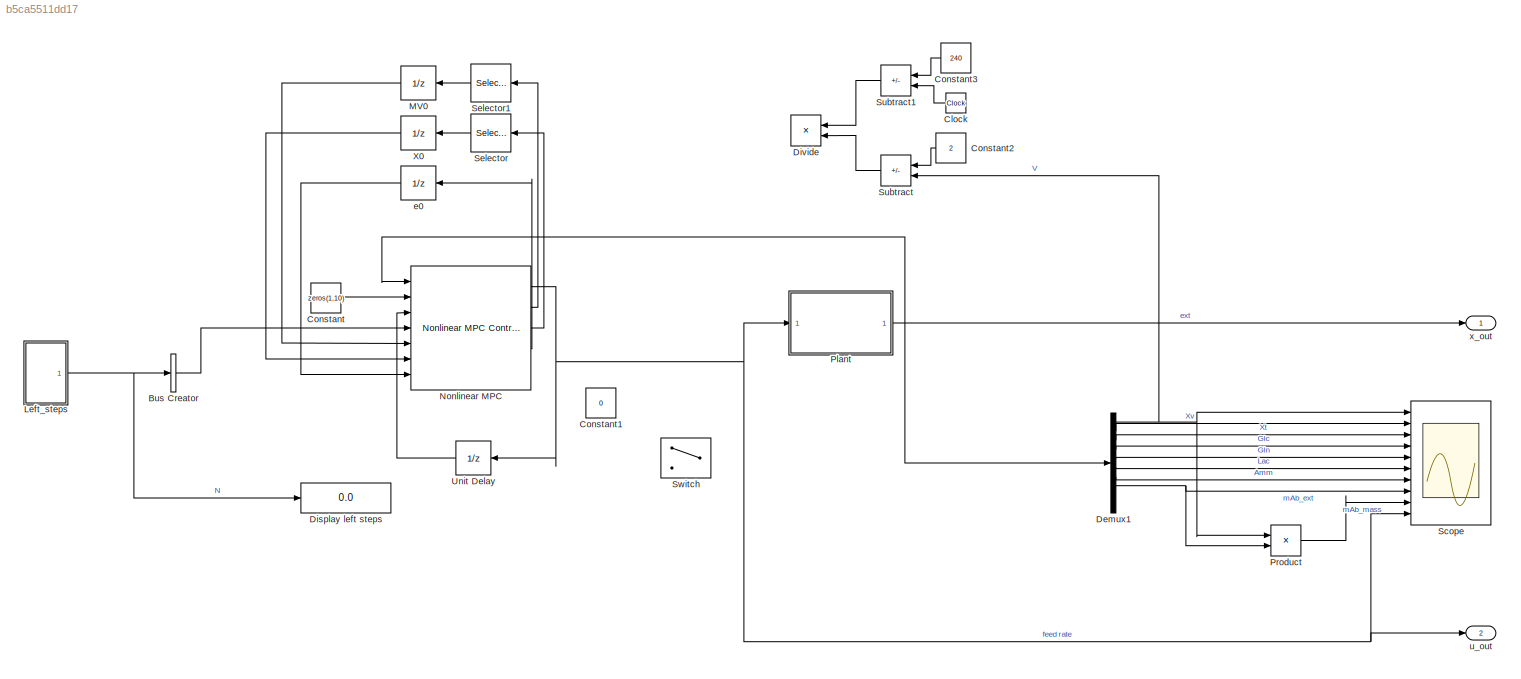
MODEL slx_b5ca5511dd17
KIND model
CONFIG AbsTol = auto
CONFIG EnableMultiTasking = off
CONFIG FixedStep = auto
CONFIG MaxStep = auto
CONFIG MinStep = auto
CONFIG RelTol = 1e-3
CONFIG SampleTimeConstraint = Unconstrained
CONFIG SolverName = VariableStepAuto
CONFIG StartTime = 0.0
CONFIG StopTime = 240
BLOCK [BusCreator] Bus Creator
  DisplayOption = bar
  InheritFromInputs = off
  Inputs = 1
  NonVirtualBus = on
  OutDataTypeStr = Bus: myBusObject
  Ports = [1, 1]
BLOCK [Clock] Clock
  Commented = on
  DisplayTime = on
BLOCK [Constant] Constant
  Value = zeros(1,10)
  VectorParams1D = off
BLOCK [Constant] Constant1
  Value = 0
BLOCK [Constant] Constant2
  Commented = on
  Value = 2
BLOCK [Constant] Constant3
  Commented = on
  Value = 240
BLOCK [Demux] Demux1
  Outputs = 10
  Ports = [1, 10]
BLOCK [Display] Display left steps
  Decimation = 1
  Ports = [1]
BLOCK [Product] Divide
  Commented = on
  Inputs = /*
  Ports = [2, 1]
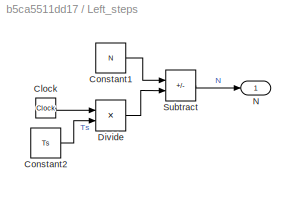
BLOCK [SubSystem] Left_steps
  Ports = [0, 1]
  RequestExecContextInheritance = off
BLOCK [Clock] Left_steps/Clock
  DisplayTime = on
BLOCK [Constant] Left_steps/Constant1
  Value = N
BLOCK [Constant] Left_steps/Constant2
  Value = Ts
BLOCK [Product] Left_steps/Divide
  Inputs = */
  Ports = [2, 1]
BLOCK [Outport] Left_steps/N
BLOCK [Sum] Left_steps/Subtract
  IconShape = rectangular
  Inputs = +-
  Ports = [2, 1]
BLOCK [UnitDelay] MV0
  HasFrameUpgradeWarning = on
  InitialCondition = Info_error.MVopt(2:end,:)
  SampleTime = -1
BLOCK [Reference] Nonlinear MPC  REF=mpclib/Nonlinear MPC Controller  (lib defined in mdl_ae329e0e0455)
  Ports = [7, 5]
  SourceBlock = mpclib/Nonlinear MPC Controller
  SourceProductBaseCode = MP
  SourceType = NonlinearMPC
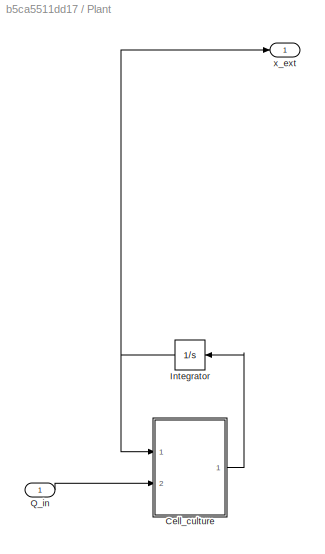
BLOCK [SubSystem] Plant
  Ports = [1, 1]
  RequestExecContextInheritance = off
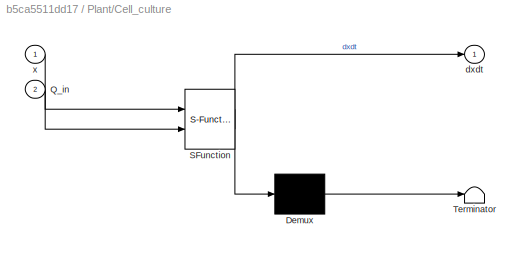
BLOCK [SubSystem] Plant/Cell_culture
  ErrorFcn = Stateflow.Translate.translate
  PermitHierarchicalResolution = ExplicitOnly
  Ports = [2, 1]
  RequestExecContextInheritance = off
  SFBlockType = MATLAB Function
  TreatAsAtomicUnit = on
BLOCK [Demux] Plant/Cell_culture/ Demux 
  Outputs = 1
  Ports = [1, 1]
BLOCK [S-Function] Plant/Cell_culture/ SFunction 
  EnableBusSupport = on
  FunctionName = sf_sfun
  PortCounts = [2 2]
  Ports = [2, 2]
  SFcnIsStateOwnerBlock = off
  SFunctionDeploymentMode = off
  Tag = Stateflow S-Function 3
BLOCK [Terminator] Plant/Cell_culture/ Terminator 
BLOCK [Inport] Plant/Cell_culture/Q_in
  Port = 2
BLOCK [Outport] Plant/Cell_culture/dxdt
  VectorParamsAs1DForOutWhenUnconnected = off
BLOCK [Inport] Plant/Cell_culture/x
BLOCK [Integrator] Plant/Integrator
  InitialCondition = x0
  LimitOutput = on
  LowerSaturationLimit = 0
  Ports = [1, 1]
BLOCK [Inport] Plant/Q_in
BLOCK [Outport] Plant/x_ext
BLOCK [Product] Product
  Ports = [2, 1]
BLOCK [Scope] Scope
  Floating = off
  NumInputPorts = 10
  Ports = [10]
  ScopeSpecificationString = Simulink.scopes.TimeScopeBlockCfg('CurrentConfiguration', extmgr.ConfigurationSet(extmgr.Configuration('Core','General UI',true),extmgr.Configuration('Core','Source UI',true),extmgr.Configuration('Sources','WiredSimulink',true,'DataLoggingVariableName','ScopeData1'),extmgr.Configuration('Visuals','Time Domain',true,'SerializedDisplays',{struct('MinYLimReal','0.55897','MaxYLimReal','2.96926','YLabe...<+10585ch>
BLOCK [Selector] Selector
  IndexOptions = Index vector (dialog),Select all
  Indices = 2:21,1
  InputPortWidth = 3
  NumberOfDimensions = 2
  OutputSizes = 1,1
  Ports = [1, 1]
BLOCK [Selector] Selector1
  IndexOptions = Index vector (dialog),Select all
  Indices = 2:21,1
  InputPortWidth = 3
  NumberOfDimensions = 2
  OutputSizes = 1,1
  Ports = [1, 1]
BLOCK [Sum] Subtract
  Commented = on
  IconShape = rectangular
  Inputs = +-
  Ports = [2, 1]
BLOCK [Sum] Subtract1
  Commented = on
  IconShape = rectangular
  Inputs = +-
  Ports = [2, 1]
BLOCK [Switch] Switch
  Criteria = u2 > Threshold
  InputSameDT = off
  SaturateOnIntegerOverflow = off
BLOCK [UnitDelay] Unit Delay
  HasFrameUpgradeWarning = on
  InitialCondition = 1/Tf*[1;1]
  SampleTime = -1
BLOCK [UnitDelay] X0
  HasFrameUpgradeWarning = on
  InitialCondition = Info_error.Xopt(2:end,:)
  SampleTime = -1
BLOCK [UnitDelay] e0
  HasFrameUpgradeWarning = on
  SampleTime = -1
BLOCK [Outport] u_out
  Port = 2
BLOCK [Outport] x_out
LINE Bus Creator:1 -> Nonlinear MPC:4
LINE Clock:1 -> Subtract1:2
LINE Constant2:1 -> Subtract:1
LINE Constant3:1 -> Subtract1:1
LINE Constant:1 -> Nonlinear MPC:2
NET Demux1:1 -> Product:1, Scope:1, Subtract:2
LINE Demux1:2 -> Scope:2
LINE Demux1:3 -> Scope:3
LINE Demux1:4 -> Scope:4
LINE Demux1:5 -> Scope:5
LINE Demux1:6 -> Scope:6
LINE Demux1:7 -> Scope:7
NET Demux1:8 -> Product:2, Scope:8
LINE Left_steps/Clock:1 -> Left_steps/Divide:1
LINE Left_steps/Constant1:1 -> Left_steps/Subtract:1
LINE Left_steps/Constant2:1 -> Left_steps/Divide:2
LINE Left_steps/Divide:1 -> Left_steps/Subtract:2
LINE Left_steps/Subtract:1 -> Left_steps/N:1
NET Left_steps:1 -> Bus Creator:1, Display left steps:1
LINE MV0:1 -> Nonlinear MPC:5
NET Nonlinear MPC:1 -> Plant:1, Scope:10, Unit Delay:1, u_out:1
LINE Nonlinear MPC:2 -> Selector1:1
LINE Nonlinear MPC:3 -> Selector:1
LINE Nonlinear MPC:4 -> e0:1
LINE Plant/Cell_culture:1 -> Plant/Integrator:1
NET Plant/Integrator:1 -> Plant/Cell_culture:1, Plant/x_ext:1
LINE Plant/Q_in:1 -> Plant/Cell_culture:2
NET Plant:1 -> Demux1:1, Nonlinear MPC:1, x_out:1
LINE Product:1 -> Scope:9
LINE Selector1:1 -> MV0:1
LINE Selector:1 -> X0:1
LINE Subtract1:1 -> Divide:1
LINE Subtract:1 -> Divide:2
LINE Unit Delay:1 -> Nonlinear MPC:3
LINE X0:1 -> Nonlinear MPC:6
LINE e0:1 -> Nonlinear MPC:7
note: NET lines group one-source signal fan-out (src -> all destinations, sorted); 1:1 wires keep LINE
CHART Plant/Cell_culture states=1 transitions=1
  STATE_LABEL 'eML_blk_kernel()'
  STATE_LABEL 'SCRIPT:\nfunction dxdt = fcn(x,Q_in)\ndxdt = deTremblay1992MFStateFcn(x,Q_in);\nend'
CHART  states=0 transitions=0
